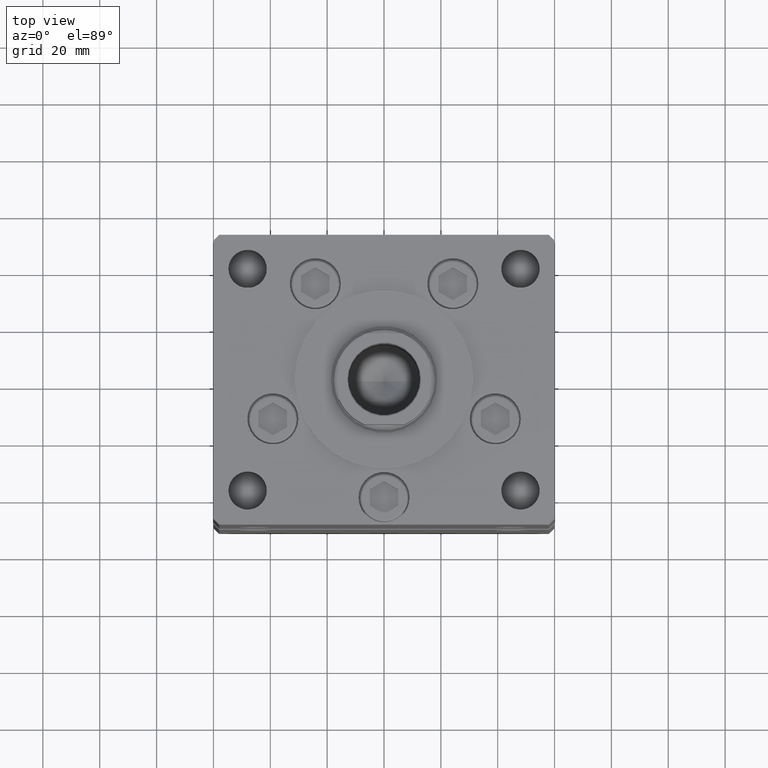
[diagram: clean part render]
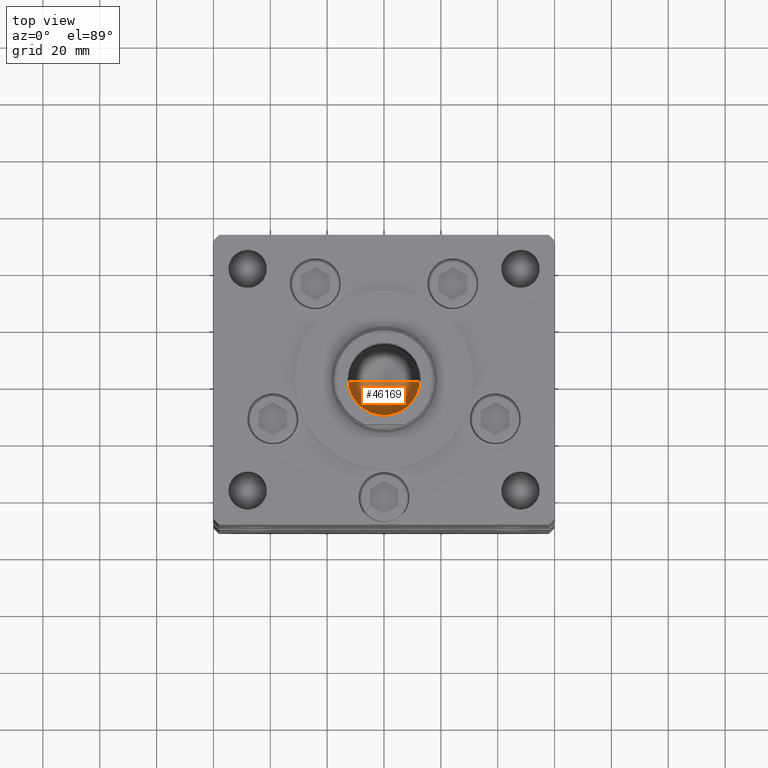
[diagram: same view with one face highlighted and labeled with its STEP entity id]
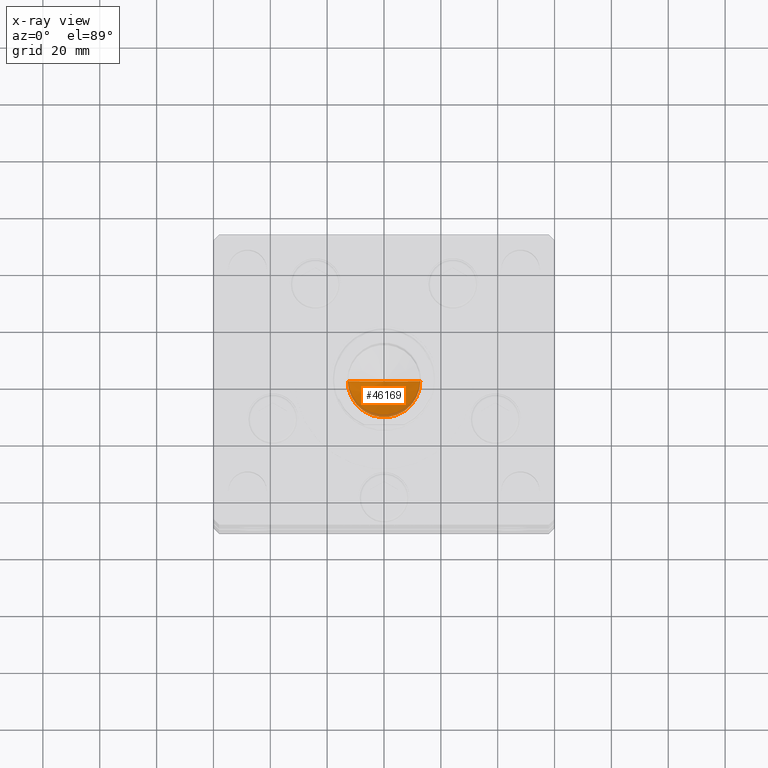
[diagram: x-ray of the same camera — body ghosted, the highlighted face saturated]
A machine part, top view. The second image highlights one B-rep face of the part: STEP entity #46169.
The next image is the same camera in x-ray: the body ghosted, the highlighted face saturated — about 8% of this face is hidden behind the body in this view.
In plain terms, the highlighted conical surface has half-angle 59 deg.
Its self-contained STEP definition (entity closure, byte-faithful):
#267 = CARTESIAN_POINT ( 'NONE',  ( 0.000000000000000000, 0.000000000000000000, 124.2500000000000142 ) ) ;
#1193 = VERTEX_POINT ( 'NONE', #53015 ) ;
#2270 = DIRECTION ( 'NONE',  ( 0.8571673007021117785, 0.000000000000000000, 0.5150380749100550437 ) ) ;
#4565 = DIRECTION ( 'NONE',  ( -0.000000000000000000, -0.000000000000000000, 1.000000000000000000 ) ) ;
#4626 = AXIS2_PLACEMENT_3D ( 'NONE', #25285, #37610, #41380 ) ;
#5216 = EDGE_CURVE ( 'NONE', #1193, #10531, #13836, .T. ) ;
#8336 = EDGE_CURVE ( 'NONE', #1193, #41908, #22787, .T. ) ;
#10531 = VERTEX_POINT ( 'NONE', #46561 ) ;
#13836 = LINE ( 'NONE', #38524, #20785 ) ;
#14045 = EDGE_LOOP ( 'NONE', ( #52501, #39671, #29599 ) ) ;
#14351 = CARTESIAN_POINT ( 'NONE',  ( -12.74999999999999112, 1.561424668912874125E-15, 124.2500000000000142 ) ) ;
#20409 = FACE_OUTER_BOUND ( 'NONE', #14045, .T. ) ;
#20785 = VECTOR ( 'NONE', #2270, 1000.000000000000000 ) ;
#22787 = LINE ( 'NONE', #47186, #46581 ) ;
#24464 = CONICAL_SURFACE ( 'NONE', #41586, 12.74999999999999112, 1.029744258676653423 ) ;
#25285 = CARTESIAN_POINT ( 'NONE',  ( 0.000000000000000000, 0.000000000000000000, 124.2500000000000142 ) ) ;
#29599 = ORIENTED_EDGE ( 'NONE', *, *, #42371, .T. ) ;
#37610 = DIRECTION ( 'NONE',  ( -0.000000000000000000, -0.000000000000000000, 1.000000000000000000 ) ) ;
#38524 = CARTESIAN_POINT ( 'NONE',  ( 12.74999999999999112, 0.000000000000000000, 124.2500000000000142 ) ) ;
#39671 = ORIENTED_EDGE ( 'NONE', *, *, #8336, .T. ) ;
#41380 = DIRECTION ( 'NONE',  ( 1.000000000000000000, 0.000000000000000000, 0.000000000000000000 ) ) ;
#41586 = AXIS2_PLACEMENT_3D ( 'NONE', #267, #4565, #52621 ) ;
#41908 = VERTEX_POINT ( 'NONE', #14351 ) ;
#42371 = EDGE_CURVE ( 'NONE', #41908, #10531, #43170, .T. ) ;
#43170 = CIRCLE ( 'NONE', #4626, 12.74999999999999112 ) ;
#43175 = DIRECTION ( 'NONE',  ( -0.8571673007021117785, 1.049727191138617956E-16, 0.5150380749100550437 ) ) ;
#46169 = ADVANCED_FACE ( 'NONE', ( #20409 ), #24464, .F. ) ;
#46561 = CARTESIAN_POINT ( 'NONE',  ( 12.74999999999999112, 0.000000000000000000, 124.2500000000000142 ) ) ;
#46581 = VECTOR ( 'NONE', #43175, 1000.000000000000000 ) ;
#47186 = CARTESIAN_POINT ( 'NONE',  ( -12.74999999999999112, 1.561424668912874125E-15, 124.2500000000000142 ) ) ;
#52501 = ORIENTED_EDGE ( 'NONE', *, *, #5216, .F. ) ;
#52621 = DIRECTION ( 'NONE',  ( 1.000000000000000000, 0.000000000000000000, 0.000000000000000000 ) ) ;
#53015 = CARTESIAN_POINT ( 'NONE',  ( -1.307202896762960287E-14, 0.000000000000000000, 116.5890271073986213 ) ) ;